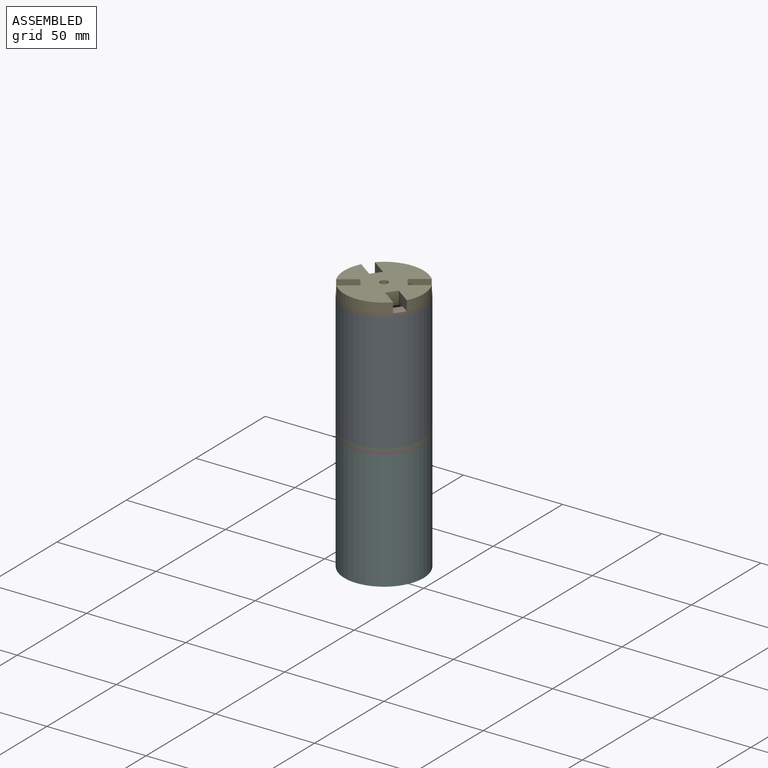
[diagram: assembled view]
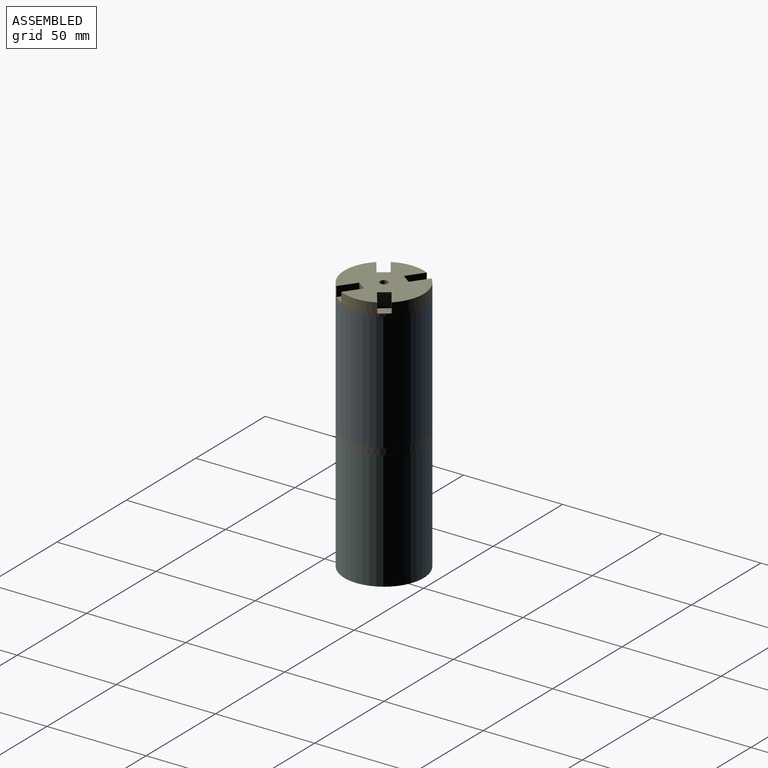
[diagram: assembled view, second angle]
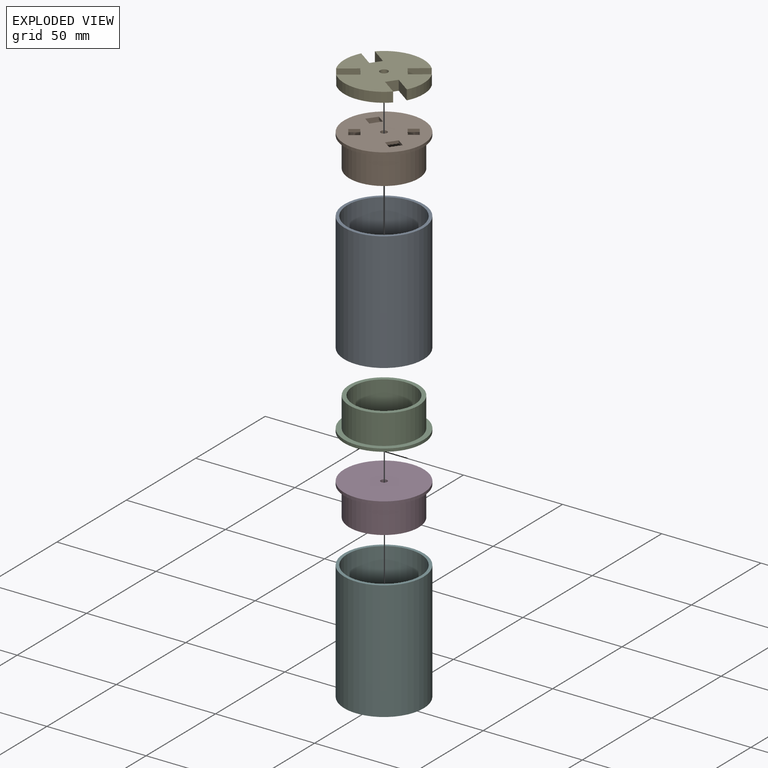
[diagram: exploded view]
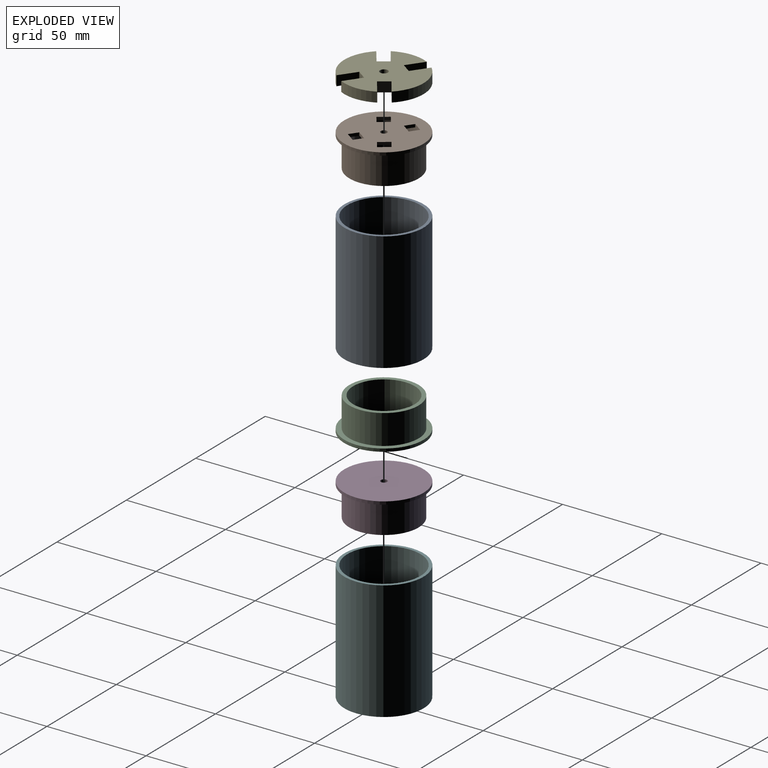
[diagram: exploded view, second angle]
ASSEMBLY  parts=6 mates=5
PART A: 4 faces, bbox 40x40x60 mm
  f0: cylinder r=18.5mm len=60mm, axis (0,0,-1), area 6974.3mm2, adj f2,f3
  f1: cylinder r=20mm len=60mm, axis (0,0,-1), area 7539.8mm2, adj f2,f3
  f2: plane 40x40mm, normal (0,0,1), area 181.4mm2, adj f0,f1
  f3: plane 40x40mm, normal (0,0,-1), area 181.4mm2, adj f0,f1
PART B: 24 faces, bbox 40x40x16.5 mm
  f0: plane 31x31mm, normal (0,0,1), area 626.7mm2, adj f2,f5,f8,f9,f10,f11,f12,f13
  f1: plane 40x40mm, normal (0,0,-1), area 1128.6mm2, adj f2,f3,f8,f9,f10,f11,f12,f13
  f2: cylinder r=1.6mm len=3.2mm, axis (0,0,-1), area 15.1mm2, adj f0,f1
  f3: cylinder r=20mm len=40mm, axis (0,0,-1), area 188.5mm2, adj f1,f4
  f4: plane 40x40mm, normal (0,0,1), area 294.5mm2, adj f3,f6
  f5: cylinder r=15.5mm len=31mm, axis (0,0,-1), area 1460.8mm2, adj f0,f7
  f6: cylinder r=17.5mm len=35mm, axis (0,0,-1), area 1649.3mm2, adj f4,f7
  f7: plane 35x35mm, normal (0,0,1), area 207.3mm2, adj f5,f6
  f8: plane 4.07x2.91mm, normal (0.58,0.81,0), area 7.5mm2, adj f0,f1,f9,f11
  f9: plane 4.88x3.49mm, normal (0.81,-0.58,0), area 9mm2, adj f0,f1,f8,f10
  f10: plane 4.07x2.91mm, normal (-0.58,-0.81,0), area 7.5mm2, adj f0,f1,f9,f11
  f11: plane 4.88x3.49mm, normal (-0.81,0.58,0), area 9mm2, adj f0,f1,f8,f10
  f12: plane 4.88x3.49mm, normal (0.81,0.58,0), area 9mm2, adj f0,f1,f13,f15
  f13: plane 4.07x2.91mm, normal (0.58,-0.81,0), area 7.5mm2, adj f0,f1,f12,f14
  f14: plane 4.88x3.49mm, normal (-0.81,-0.58,0), area 9mm2, adj f0,f1,f13,f15
  f15: plane 4.07x2.91mm, normal (-0.58,0.81,0), area 7.5mm2, adj f0,f1,f12,f14
  f16: plane 4.07x2.91mm, normal (0.58,0.81,0), area 7.5mm2, adj f0,f1,f17,f19
  f17: plane 4.88x3.49mm, normal (0.81,-0.58,0), area 9mm2, adj f0,f1,f16,f18
  f18: plane 4.07x2.91mm, normal (-0.58,-0.81,0), area 7.5mm2, adj f0,f1,f17,f19
  f19: plane 4.88x3.49mm, normal (-0.81,0.58,0), area 9mm2, adj f0,f1,f16,f18
  f20: plane 4.07x2.91mm, normal (0.58,-0.81,0), area 7.5mm2, adj f0,f1,f21,f23
  f21: plane 4.88x3.49mm, normal (-0.81,-0.58,0), area 9mm2, adj f0,f1,f20,f22
  f22: plane 4.07x2.91mm, normal (-0.58,0.81,0), area 7.5mm2, adj f0,f1,f21,f23
  f23: plane 4.88x3.49mm, normal (0.81,0.58,0), area 9mm2, adj f0,f1,f20,f22
PART C: 8 faces, bbox 40x40x16.5 mm
  f0: plane 31x31mm, normal (0,0,1), area 746.7mm2, adj f1,f5
  f1: cylinder r=1.6mm len=3.2mm, axis (0,0,-1), area 15.1mm2, adj f0,f4
  f2: cylinder r=20mm len=40mm, axis (0,0,-1), area 188.5mm2, adj f3,f4
  f3: plane 40x40mm, normal (0,0,1), area 294.5mm2, adj f2,f6
  f4: plane 40x40mm, normal (0,0,-1), area 1248.6mm2, adj f1,f2
  f5: cylinder r=15.5mm len=31mm, axis (0,0,-1), area 1460.8mm2, adj f0,f7
  f6: cylinder r=17.5mm len=35mm, axis (0,0,-1), area 1649.3mm2, adj f3,f7
  f7: plane 35x35mm, normal (0,0,1), area 207.3mm2, adj f5,f6
PART D: same geometry as C
PART E: 19 faces, bbox 40x40x5 mm
  f0: plane 8.14x5.81mm, normal (-0.58,0.81,0), area 50mm2, adj f1,f16,f17,f18
  f1: cylinder r=20mm len=28.69mm, axis (0,0,-1), area 160mm2, adj f0,f2,f17,f18
  f2: plane 8.14x5.81mm, normal (0.58,0.81,0), area 50mm2, adj f1,f3,f17,f18
  f3: plane 5x4.88mm, normal (0.81,-0.58,0), area 30mm2, adj f2,f4,f17,f18
  f4: plane 8.14x5.81mm, normal (-0.58,-0.81,0), area 50mm2, adj f3,f5,f17,f18
  f5: cylinder r=20mm len=18.11mm, axis (0,0,-1), area 93.9mm2, adj f4,f6,f17,f18
  f6: plane 8.14x5.81mm, normal (-0.58,0.81,0), area 50mm2, adj f5,f7,f17,f18
  f7: plane 5x4.88mm, normal (0.81,0.58,0), area 30mm2, adj f6,f8,f17,f18
  f8: plane 8.14x5.81mm, normal (0.58,-0.81,0), area 50mm2, adj f7,f9,f17,f18
  f9: cylinder r=20mm len=28.69mm, axis (0,0,-1), area 160mm2, adj f8,f10,f17,f18
  f10: plane 8.14x5.81mm, normal (-0.58,-0.81,0), area 50mm2, adj f9,f11,f17,f18
  f11: plane 5x4.88mm, normal (-0.81,0.58,0), area 30mm2, adj f10,f12,f17,f18
  f12: plane 8.14x5.81mm, normal (0.58,0.81,0), area 50mm2, adj f11,f13,f17,f18
  f13: cylinder r=20mm len=18.11mm, axis (0,0,-1), area 93.9mm2, adj f12,f14,f17,f18
  f14: plane 8.14x5.81mm, normal (0.58,-0.81,0), area 50mm2, adj f13,f16,f17,f18
  f15: cylinder r=2mm len=5mm, axis (0,0,-1), area 62.8mm2, adj f17,f18
  f16: plane 5x4.88mm, normal (-0.81,-0.58,0), area 30mm2, adj f0,f14,f17,f18
  f17: plane 40x40mm, normal (0,0,1), area 1000.4mm2, adj f0,f1,f2,f3,f4,f5,f6,f7
  f18: plane 40x40mm, normal (0,0,-1), area 1000.4mm2, adj f0,f1,f2,f3,f4,f5,f6,f7
PART F: same geometry as A
PLACE A t=(0,0,63)mm
PLACE B rot(axis=(1,0,0),180deg) t=(0,0,124.5)mm
PLACE C t=(0,0,61.5)mm
PLACE D rot(axis=(1,0,0),180deg) t=(0,0,61.5)mm
PLACE E t=(0,0,124.5)mm
PLACE F at identity
MATE fastened B.f5 <-> A.f0  axis (0,0,-1) through (0,0,123)mm
MATE fastened E.f1 <-> B.f2  axis (0,0,-1) through (0,0,124.5)mm
MATE fastened A.f0 <-> C.f5  axis (0,0,-1) through (0,0,63)mm
MATE fastened D.f2 <-> C.f2  axis (0,0,1) through (0,0,61.5)mm
MATE fastened D.f5 <-> F.f1  axis (0,0,-1) through (0,0,60)mm
